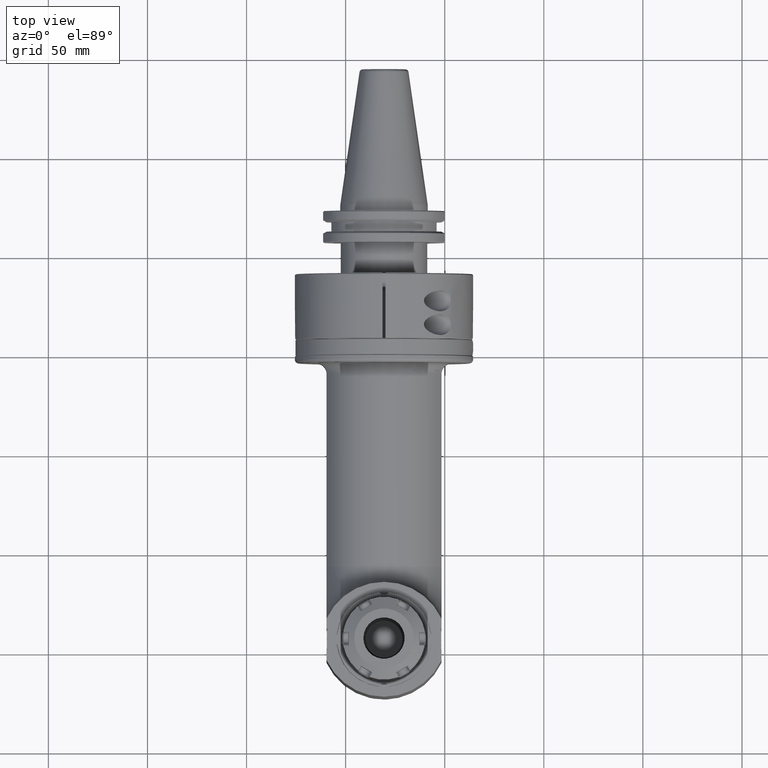
[diagram: clean part render]
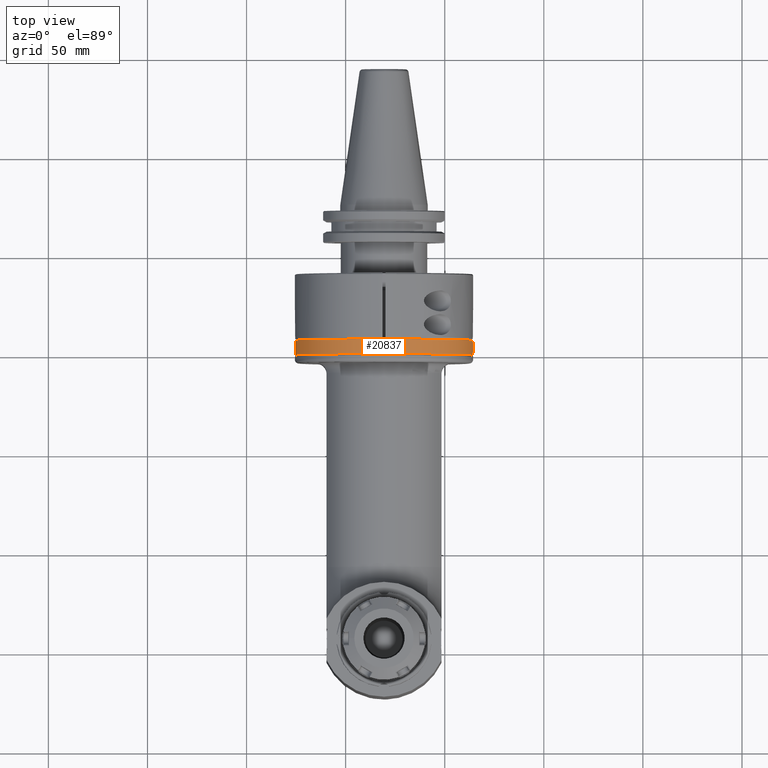
[diagram: same view with one face highlighted and labeled with its STEP entity id]
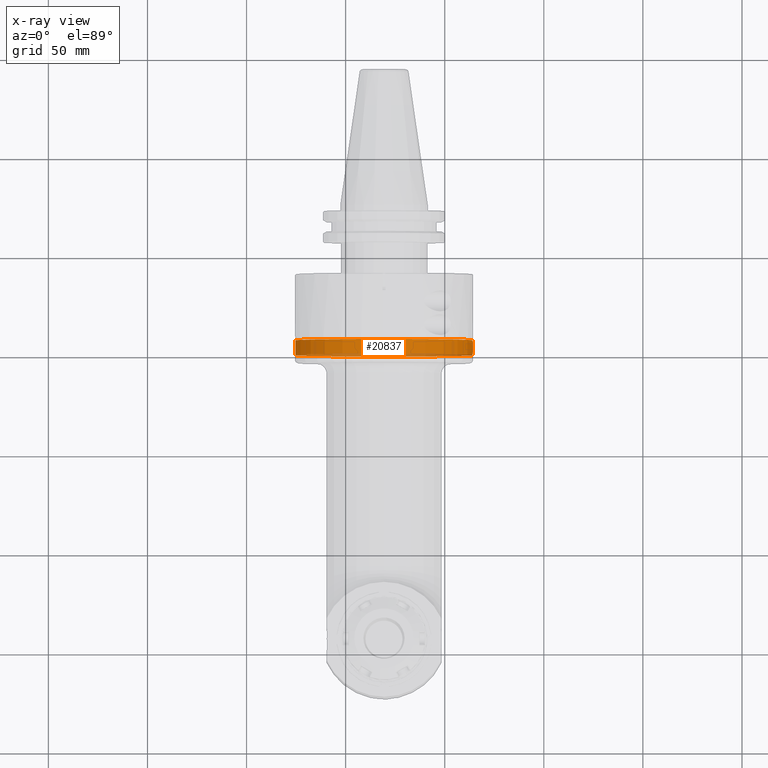
[diagram: x-ray of the same camera — body ghosted, the highlighted face saturated]
A machine part, top view. The second image highlights one B-rep face of the part: STEP entity #20837.
The next image is the same camera in x-ray: the body ghosted, the highlighted face saturated — about 14% of this face is hidden behind the body in this view.
In plain terms, the highlighted cylindrical surface (bore or boss wall) has radius 45 mm, axis along (-0, 1, 0).
Its self-contained STEP definition (entity closure, byte-faithful):
#301=FACE_BOUND('',#2861,.T.);
#1248=B_SPLINE_CURVE_WITH_KNOTS('',3,(#32043,#32044,#32045,#32046,#32047,
#32048,#32049,#32050,#32051,#32052,#32053,#32054,#32055,#32056,#32057,#32058,
#32059,#32060,#32061,#32062),.UNSPECIFIED.,.F.,.F.,(4,2,2,2,2,2,2,2,2,4),
(2.95044138111355E-5,0.0363727668848969,0.0736012616972778,0.129053060422892,
0.175651370537785,0.221814559351573,0.268002089720422,0.319194494317853,
0.375343037301926,0.433055436472664),.UNSPECIFIED.);
#1249=B_SPLINE_CURVE_WITH_KNOTS('',3,(#32063,#32064,#32065,#32066,#32067,
#32068,#32069,#32070,#32071,#32072,#32073,#32074,#32075,#32076,#32077,#32078,
#32079,#32080,#32081,#32082),.UNSPECIFIED.,.F.,.F.,(4,2,2,2,2,2,2,2,2,4),
(2.95044138120171E-5,0.0363727668847514,0.0736012616970103,0.129053060422615,
0.175651370537278,0.221814559351296,0.268002089720434,0.319194494317477,
0.375343037300867,0.433055436470626),.UNSPECIFIED.);
#1626=FACE_OUTER_BOUND('',#2860,.T.);
#2860=EDGE_LOOP('',(#15102,#15103,#15104,#15105,#15106,#15107));
#2861=EDGE_LOOP('',(#15108,#15109));
#4193=CIRCLE('',#22214,45.);
#4194=CIRCLE('',#22215,45.);
#4195=CIRCLE('',#22217,45.);
#4196=CIRCLE('',#22218,45.);
#5194=LINE('',#32039,#7256);
#7256=VECTOR('',#24846,45.);
#9334=VERTEX_POINT('',#32030);
#9335=VERTEX_POINT('',#32031);
#9336=VERTEX_POINT('',#32036);
#9337=VERTEX_POINT('',#32037);
#9338=VERTEX_POINT('',#32041);
#9339=VERTEX_POINT('',#32042);
#11551=EDGE_CURVE('',#9334,#9335,#4193,.T.);
#11552=EDGE_CURVE('',#9335,#9334,#4194,.T.);
#11554=EDGE_CURVE('',#9336,#9337,#4195,.T.);
#11555=EDGE_CURVE('',#9336,#9334,#5194,.T.);
#11556=EDGE_CURVE('',#9337,#9336,#4196,.T.);
#11557=EDGE_CURVE('',#9338,#9339,#1248,.T.);
#11558=EDGE_CURVE('',#9339,#9338,#1249,.T.);
#15102=ORIENTED_EDGE('',*,*,#11554,.F.);
#15103=ORIENTED_EDGE('',*,*,#11555,.T.);
#15104=ORIENTED_EDGE('',*,*,#11551,.T.);
#15105=ORIENTED_EDGE('',*,*,#11552,.T.);
#15106=ORIENTED_EDGE('',*,*,#11555,.F.);
#15107=ORIENTED_EDGE('',*,*,#11556,.F.);
#15108=ORIENTED_EDGE('',*,*,#11557,.T.);
#15109=ORIENTED_EDGE('',*,*,#11558,.T.);
#20505=CYLINDRICAL_SURFACE('',#22216,45.);
#20837=ADVANCED_FACE('',(#1626,#301),#20505,.T.);
#22214=AXIS2_PLACEMENT_3D('',#32032,#24837,#24838);
#22215=AXIS2_PLACEMENT_3D('',#32033,#24839,#24840);
#22216=AXIS2_PLACEMENT_3D('',#32035,#24842,#24843);
#22217=AXIS2_PLACEMENT_3D('',#32038,#24844,#24845);
#22218=AXIS2_PLACEMENT_3D('',#32040,#24847,#24848);
#24837=DIRECTION('center_axis',(0.,1.,0.));
#24838=DIRECTION('ref_axis',(0.,0.,1.));
#24839=DIRECTION('center_axis',(0.,1.,0.));
#24840=DIRECTION('ref_axis',(0.,0.,1.));
#24842=DIRECTION('center_axis',(0.,1.,0.));
#24843=DIRECTION('ref_axis',(0.,0.,1.));
#24844=DIRECTION('center_axis',(0.,1.,0.));
#24845=DIRECTION('ref_axis',(0.,0.,1.));
#24846=DIRECTION('',(0.,-1.,0.));
#24847=DIRECTION('center_axis',(0.,1.,0.));
#24848=DIRECTION('ref_axis',(0.,0.,1.));
#32030=CARTESIAN_POINT('',(0.,-32.79999652175,-45.));
#32031=CARTESIAN_POINT('',(-5.54929662234637E-13,-32.7999965217448,44.9999999999952));
#32032=CARTESIAN_POINT('Origin',(0.,-32.79999652175,0.));
#32033=CARTESIAN_POINT('Origin',(0.,-32.79999652175,0.));
#32035=CARTESIAN_POINT('Origin',(0.,-33.39,0.));
#32036=CARTESIAN_POINT('',(0.,-25.40000436251,-45.));
#32037=CARTESIAN_POINT('',(-6.78750142728863E-13,-25.4000043625137,45.0000000000014));
#32038=CARTESIAN_POINT('Origin',(0.,-25.40000436251,0.));
#32039=CARTESIAN_POINT('',(-5.51091059616309E-15,-33.39,-45.));
#32040=CARTESIAN_POINT('Origin',(0.,-25.40000436251,0.));
#32041=CARTESIAN_POINT('',(44.9616057546834,-28.6000012088568,1.85849612628308));
#32042=CARTESIAN_POINT('',(44.9616057546835,-28.5999987911432,-1.85849612628308));
#32043=CARTESIAN_POINT('Ctrl Pts',(44.9616193902987,-28.6000010055327,1.85816624711459));
#32044=CARTESIAN_POINT('Ctrl Pts',(44.9616183065791,-28.478857124188,1.85819246962795));
#32045=CARTESIAN_POINT('Ctrl Pts',(44.962112818186,-28.3579100790619,1.84634030278442));
#32046=CARTESIAN_POINT('Ctrl Pts',(44.9640558955939,-28.1173509578279,1.79840671092958));
#32047=CARTESIAN_POINT('Ctrl Pts',(44.9655233052257,-27.9983135952468,1.76183980980761));
#32048=CARTESIAN_POINT('Ctrl Pts',(44.9701331912571,-27.7127279066508,1.64084403866493));
#32049=CARTESIAN_POINT('Ctrl Pts',(44.9748134822114,-27.4960023051167,1.51946439750249));
#32050=CARTESIAN_POINT('Ctrl Pts',(44.9858998963281,-27.1186636768799,1.13969616041141));
#32051=CARTESIAN_POINT('Ctrl Pts',(44.9908807599338,-26.9820676204173,0.933911489180595));
#32052=CARTESIAN_POINT('Ctrl Pts',(44.9979803130312,-26.7969939807417,0.482028934960112));
#32053=CARTESIAN_POINT('Ctrl Pts',(45.0000068144257,-26.7498159148345,0.241481254987902));
#32054=CARTESIAN_POINT('Ctrl Pts',(44.999993146328,-26.7501912161093,-0.244142345400539));
#32055=CARTESIAN_POINT('Ctrl Pts',(44.9979492728953,-26.7977415251005,-0.484985924524637));
#32056=CARTESIAN_POINT('Ctrl Pts',(44.990462594651,-26.9929804098577,-0.959425472319302));
#32057=CARTESIAN_POINT('Ctrl Pts',(44.9853002377373,-27.1389236701962,-1.16048490427043));
#32058=CARTESIAN_POINT('Ctrl Pts',(44.9758135890764,-27.4622423098036,-1.48493068499596));
#32059=CARTESIAN_POINT('Ctrl Pts',(44.9709247261191,-27.6626247233202,-1.62004834940154));
#32060=CARTESIAN_POINT('Ctrl Pts',(44.9637552700176,-28.1089184081738,-1.80826620517207));
#32061=CARTESIAN_POINT('Ctrl Pts',(44.9616021690623,-28.3555298294602,-1.85858291452446));
#32062=CARTESIAN_POINT('Ctrl Pts',(44.9615921190682,-28.5999985878191,-1.85882600545156));
#32063=CARTESIAN_POINT('Ctrl Pts',(44.9616193902987,-28.5999989944673,-1.8581662471146));
#32064=CARTESIAN_POINT('Ctrl Pts',(44.9616183065791,-28.7211428758115,-1.85819246962795));
#32065=CARTESIAN_POINT('Ctrl Pts',(44.962112818186,-28.842089920937,-1.84634030278453));
#32066=CARTESIAN_POINT('Ctrl Pts',(44.9640558955938,-29.0826490421699,-1.79840671093014));
#32067=CARTESIAN_POINT('Ctrl Pts',(44.9655233052257,-29.2016864047504,-1.76183980980852));
#32068=CARTESIAN_POINT('Ctrl Pts',(44.9701331912571,-29.4872720933456,-1.64084403866684));
#32069=CARTESIAN_POINT('Ctrl Pts',(44.9748134822113,-29.7039976948801,-1.51946439750491));
#32070=CARTESIAN_POINT('Ctrl Pts',(44.985899896328,-30.081336323117,-1.13969616041521));
#32071=CARTESIAN_POINT('Ctrl Pts',(44.9908807599337,-30.2179323795798,-0.933911489185504));
#32072=CARTESIAN_POINT('Ctrl Pts',(44.9979803130311,-30.403006019257,-0.48202893496515));
#32073=CARTESIAN_POINT('Ctrl Pts',(45.0000068144259,-30.4501840851652,-0.241481254990638));
#32074=CARTESIAN_POINT('Ctrl Pts',(44.9999931463282,-30.4498087838905,0.24414234540339));
#32075=CARTESIAN_POINT('Ctrl Pts',(44.9979492728952,-30.4022584748982,0.484985924529725));
#32076=CARTESIAN_POINT('Ctrl Pts',(44.9904625946509,-30.2070195901399,0.959425472322841));
#32077=CARTESIAN_POINT('Ctrl Pts',(44.9853002377372,-30.0610763298017,1.16048490427334));
#32078=CARTESIAN_POINT('Ctrl Pts',(44.9758135890763,-29.7377576901931,1.48493068499841));
#32079=CARTESIAN_POINT('Ctrl Pts',(44.970924726119,-29.5373752766764,1.62004834940355));
#32080=CARTESIAN_POINT('Ctrl Pts',(44.9637552700176,-29.0910815918235,1.80826620517264));
#32081=CARTESIAN_POINT('Ctrl Pts',(44.9616021690623,-28.8444701705385,1.85858291452445));
#32082=CARTESIAN_POINT('Ctrl Pts',(44.9615921190682,-28.6000014121809,1.85882600545155));